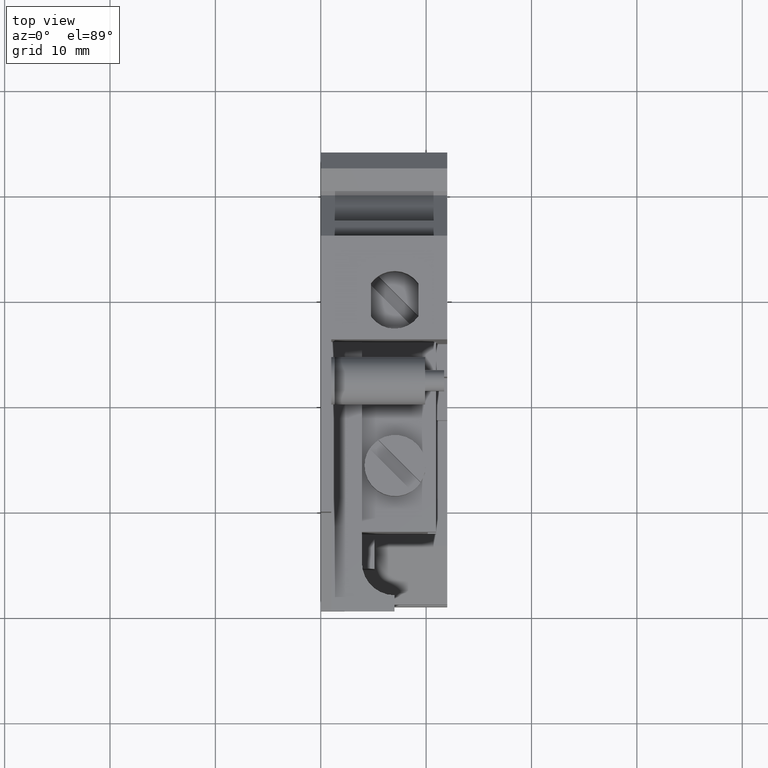
[diagram: clean part render]
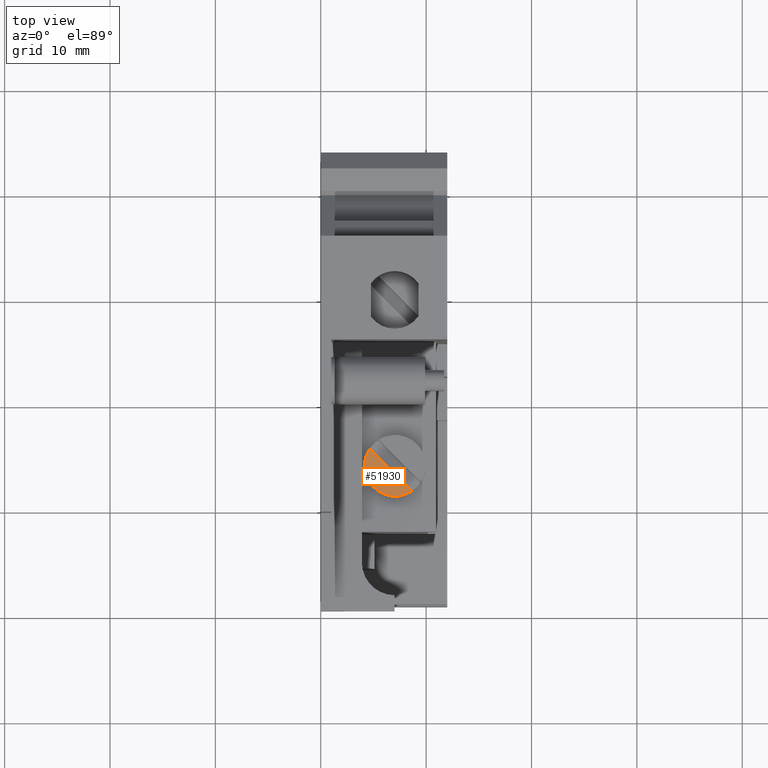
[diagram: same view with one face highlighted and labeled with its STEP entity id]
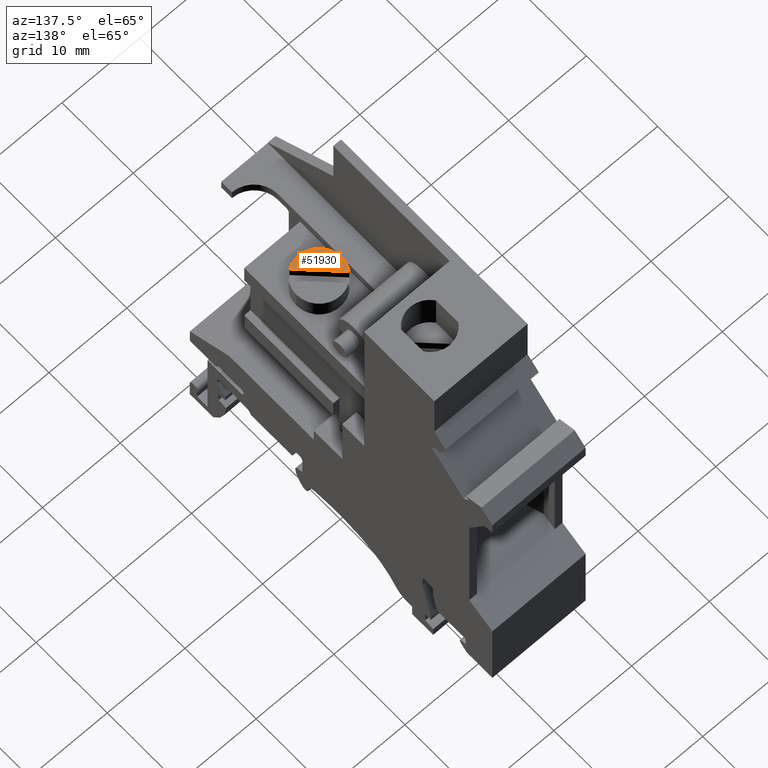
[diagram: same view with one face highlighted and labeled with its STEP entity id]
A machine part, top view. The second image highlights one B-rep face of the part: STEP entity #51930.
A second angle (auxiliary view) of the same face is appended — the face is thin or edge-on in the first view.
In plain terms, the highlighted planar face has unit normal (0, 0, 1).
Its self-contained STEP definition (entity closure, byte-faithful):
#51140=CARTESIAN_POINT('',(-158.67314884364,153.261548850787,
-7.3805043334858));
#51150=VERTEX_POINT('',#51140);
#51180=CARTESIAN_POINT('',(-160.255125039702,153.261548850787,
-4.94999999999998));
#51190=DIRECTION('',(0.,1.,0.));
#51200=DIRECTION('',(0.,0.,1.));
#51210=AXIS2_PLACEMENT_3D('',#51180,#51190,#51200);
#51220=CIRCLE('',#51210,2.9);
#51230=CARTESIAN_POINT('',(-160.255125039702,153.261548850787,
-7.84999999999998));
#51240=VERTEX_POINT('',#51230);
#51250=EDGE_CURVE('',#51150,#51240,#51220,.T.);
#51540=CARTESIAN_POINT('',(-157.505125039702,153.261548850787,-4.95));
#51550=DIRECTION('',(0.,1.,0.));
#51560=DIRECTION('',(0.,0.,1.));
#51570=AXIS2_PLACEMENT_3D('',#51540,#51550,#51560);
#51580=PLANE('',#51570);
#51800=CARTESIAN_POINT('',(-162.685629373187,153.261548850787,
-3.36802380393803));
#51810=VERTEX_POINT('',#51800);
#51820=EDGE_CURVE('',#51240,#51810,#51220,.T.);
#51830=ORIENTED_EDGE('',*,*,#51820,.T.);
#51840=ORIENTED_EDGE('',*,*,#51250,.T.);
#51850=CARTESIAN_POINT('',(0.,153.261548850787,-166.053653177125));
#51860=DIRECTION('',(0.707106781186548,0.,-0.707106781186547));
#51870=VECTOR('',#51860,1.);
#51880=LINE('',#51850,#51870);
#51890=EDGE_CURVE('',#51810,#51150,#51880,.T.);
#51900=ORIENTED_EDGE('',*,*,#51890,.T.);
#51910=EDGE_LOOP('',(#51900,#51840,#51830));
#51920=FACE_OUTER_BOUND('',#51910,.T.);
#51930=ADVANCED_FACE('',(#51920),#51580,.T.);